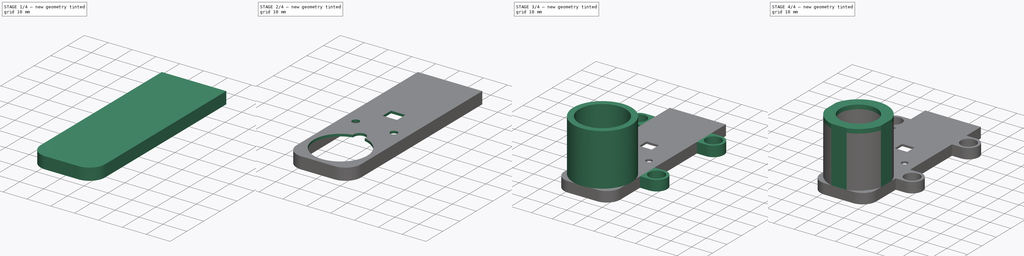
[diagram: build sequence overview — one tinted view per stage of 4, left to right]
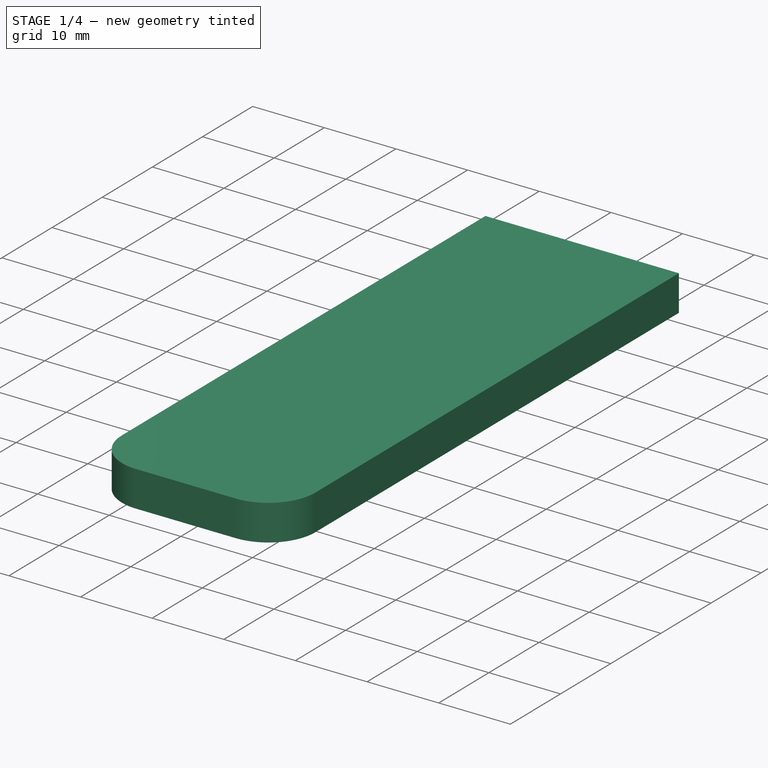
[diagram: stage 1 of 4 — iso view after this stage's code; geometry added in this stage tinted green]
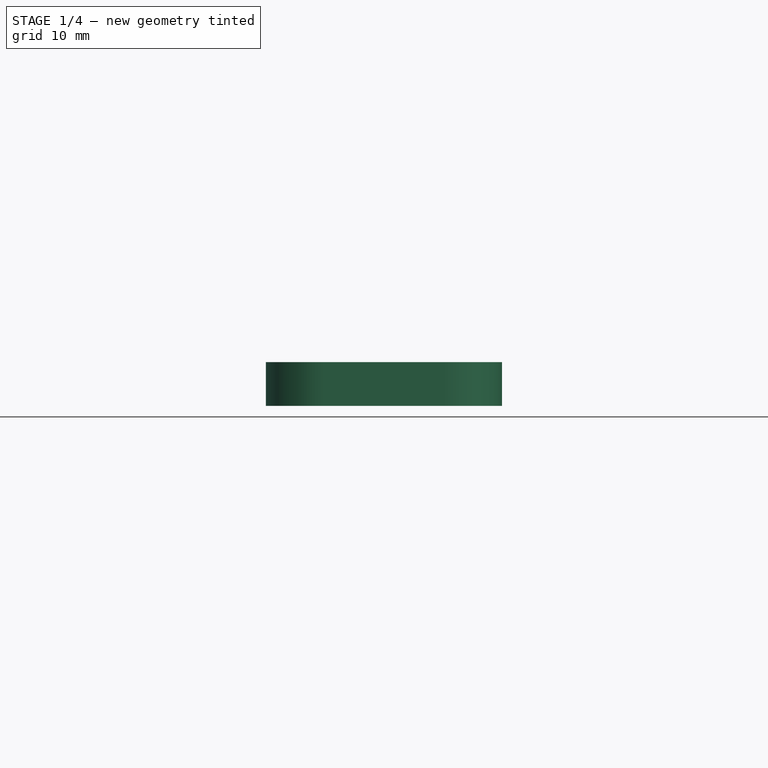
[diagram: stage 1 of 4 — front view after this stage's code; geometry added in this stage tinted green]
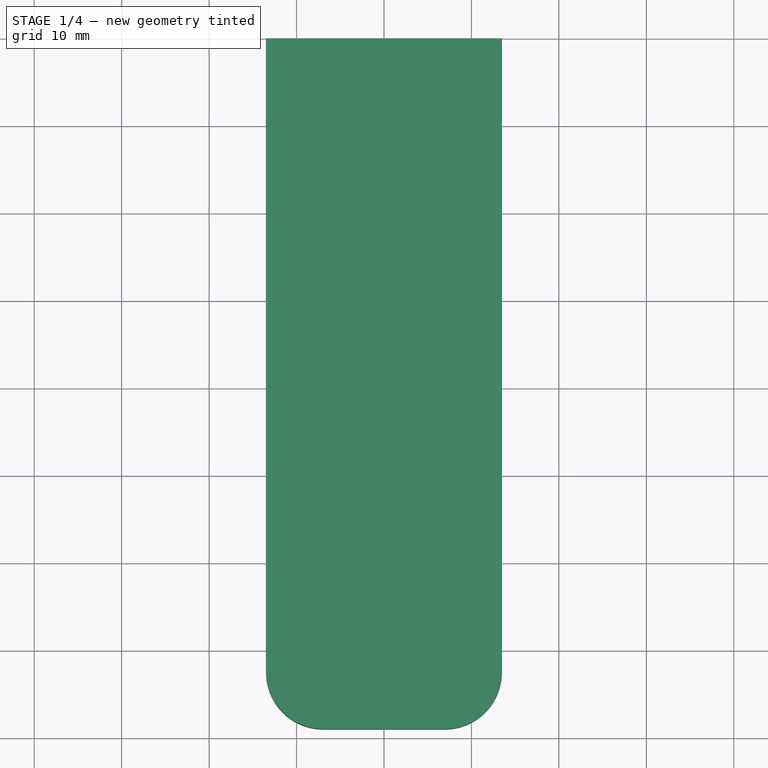
[diagram: stage 1 of 4 — top view after this stage's code; geometry added in this stage tinted green]
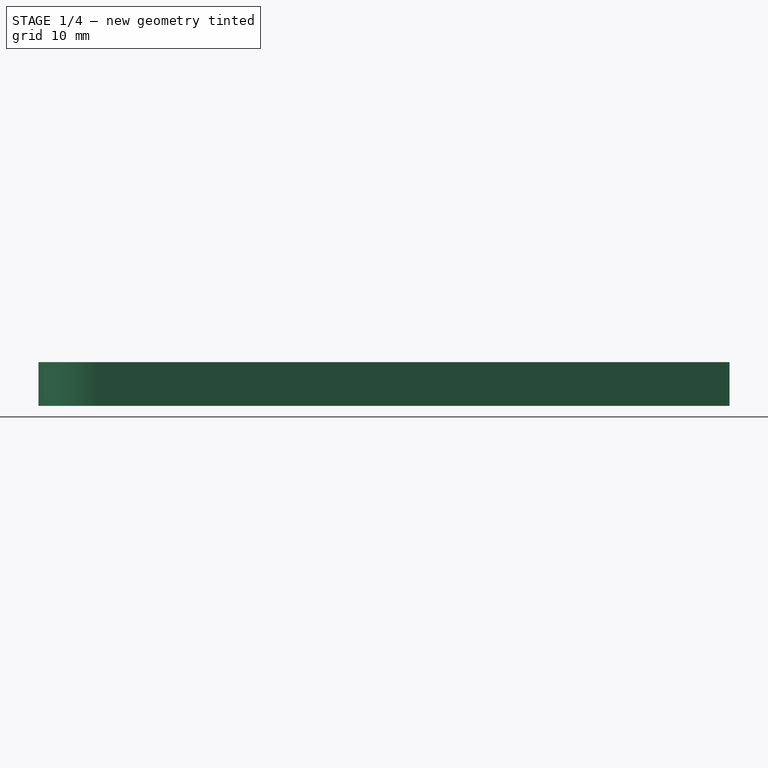
[diagram: stage 1 of 4 — right view after this stage's code; geometry added in this stage tinted green]
FCSTD DOCUMENT  (FreeCAD 1.0R38641 +678 (Git))
Label: hub
License: All rights reserved
LicenseURL: https://en.wikipedia.org/wiki/All_rights_reserved
objects: Sketcher::SketchObject×9, PartDesign::Pad×5, PartDesign::Pocket×4, PartDesign::Body×1
note: 46 computed .brp shape members not serialized (recipe doc carries the construction recipe); baked Part::Feature solids carry a one-line shape summary decoded from their .brp

FEATURE [Sketcher::SketchObject] Sketch188
  ArcFitTolerance = 0
  AttachmentSupport = -> [XY_Plane024]
  FullyConstrained = true
  MakeInternals = false
  MapMode = 5
  sketch-geometry (12):
    g0: LineSegment StartX=11.5 StartY=-2 StartZ=0 EndX=11.5 EndY=-72 EndZ=0
    g1: LineSegment StartX=6.5 StartY=-77 StartZ=0 EndX=-6.5 EndY=-77 EndZ=0
    g2: LineSegment StartX=-11.5 StartY=-72 StartZ=0 EndX=-11.5 EndY=-2 EndZ=0
    g3: ArcOfCircle CenterX=-6.5 CenterY=-72 CenterZ=0 NormalX=0 NormalY=0 NormalZ=1 AngleXU=0 Radius=5 StartAngle=3.14159 EndAngle=4.71239
    g4: ArcOfCircle CenterX=6.5 CenterY=-72 CenterZ=0 NormalX=0 NormalY=0 NormalZ=1 AngleXU=0 Radius=5 StartAngle=4.71239 EndAngle=6.28319
    g5: LineSegment StartX=-13.5 StartY=0 StartZ=0 EndX=-13.5 EndY=-72.44 EndZ=0
    g6: LineSegment StartX=-6.94 StartY=-79 StartZ=0 EndX=6.94 EndY=-79 EndZ=0
    g7: LineSegment StartX=13.5 StartY=-72.44 StartZ=0 EndX=13.5 EndY=0 EndZ=0
    g8: ArcOfCircle CenterX=-6.94 CenterY=-72.44 CenterZ=0 NormalX=0 NormalY=0 NormalZ=1 AngleXU=0 Radius=6.56 StartAngle=3.14159 EndAngle=4.71239
    g9: ArcOfCircle CenterX=6.94 CenterY=-72.44 CenterZ=0 NormalX=0 NormalY=0 NormalZ=1 AngleXU=0 Radius=6.56 StartAngle=4.71239 EndAngle=6.28319
    g10: LineSegment StartX=-11.5 StartY=-2 StartZ=0 EndX=11.5 EndY=-2 EndZ=0
    g11: LineSegment StartX=13.5 StartY=0 StartZ=0 EndX=-13.5 EndY=0 EndZ=0
  constraints (32):
    c: Horizontal(g1)
    c: Vertical(g0)
    c: Vertical(g2)
    c: Distance(g-1,g2) = 11.5
    c: Tangent(g1,g3) = 1.5708
    c: Tangent(g2,g3) = 1.5708
    c: Distance(g-1,g1) = 77
    c: Tangent(g0,g4) = 1.5708
    c: Tangent(g1,g4) = 1.5708
    c: Radius(g4) = 5
    c: Equal(g4,g3)
    c: PointOnObject(g5,g-1)
    c: Vertical(g5)
    c: Horizontal(g6)
    c: PointOnObject(g7,g-1)
    c: Vertical(g7)
    c: Tangent(g5,g8) = -1.5708
    c: Tangent(g6,g8) = -1.5708
    c: Radius(g8) = 6.56
    c: Tangent(g7,g9) = -1.5708
    c: Tangent(g6,g9) = -1.5708
    c: Equal(g8,g9)
    c: Distance(g-1,g6) = 79
    c: Horizontal(g10)
    c: Coincident(g2,g10)
    c: Coincident(g0,g10)
    c: DistanceX(g10,g10) = 23
    c: Distance(g-1,g10) = 2
    c: Distance(g7,g5) = 27
    c: Distance(g2,g5) = 2
    c: Coincident(g7,g11)
    c: Coincident(g5,g11)
FEATURE [PartDesign::Pad] Pad086
  Direction = (0,0,1)
  Length = 4
  Length2 = 10
  Profile = -> Sketch188
  ReferenceAxis = -> Sketch188 [N_Axis]
  Suppressed = false
  Type = 0
FEATURE [Sketcher::SketchObject] Sketch189
  ArcFitTolerance = 0
  AttachmentSupport = -> [Pad086]
  FullyConstrained = true
  MakeInternals = false
  MapMode = 5
  Placement = pos=(0,0,4) rot=(0,0,1;0rad)
  sketch-geometry (6):
    g0: LineSegment StartX=-13.5 StartY=0 StartZ=0 EndX=13.5 EndY=0 EndZ=0
    g1: LineSegment StartX=13.5 StartY=0 StartZ=0 EndX=13.5 EndY=-72.44 EndZ=0
    g2: LineSegment StartX=6.94 StartY=-79 StartZ=0 EndX=-6.94 EndY=-79 EndZ=0
    g3: LineSegment StartX=-13.5 StartY=-72.44 StartZ=0 EndX=-13.5 EndY=0 EndZ=0
    g4: ArcOfCircle CenterX=-6.94 CenterY=-72.44 CenterZ=0 NormalX=0 NormalY=0 NormalZ=1 AngleXU=0 Radius=6.56 StartAngle=3.14159 EndAngle=4.71239
    g5: ArcOfCircle CenterX=6.94 CenterY=-72.44 CenterZ=0 NormalX=0 NormalY=0 NormalZ=1 AngleXU=0 Radius=6.56 StartAngle=4.71239 EndAngle=6.28319
  constraints (16):
    c: Coincident(g0,g1)
    c: Coincident(g3,g0)
    c: Horizontal(g0)
    c: Horizontal(g2)
    c: Vertical(g1)
    c: Vertical(g3)
    c: PointOnObject(g0,g-1)
    c: DistanceX(g0,g0) = 27
    c: Distance(g-1,g3) = 13.5
    c: Distance(g-1,g2) = 79
    c: Tangent(g3,g4) = 1.5708
    c: Tangent(g2,g4) = 1.5708
    c: Radius(g4) = 6.56
    c: Tangent(g1,g5) = 1.5708
    c: Tangent(g2,g5) = 1.5708
    c: Equal(g4,g5)
FEATURE [PartDesign::Pad] Pad087
  BaseFeature = -> Pad086
  Direction = (0,0,1)
  Length = 1
  Length2 = 10
  Profile = -> Sketch189
  ReferenceAxis = -> Sketch189 [N_Axis]
  Suppressed = false
  Type = 0
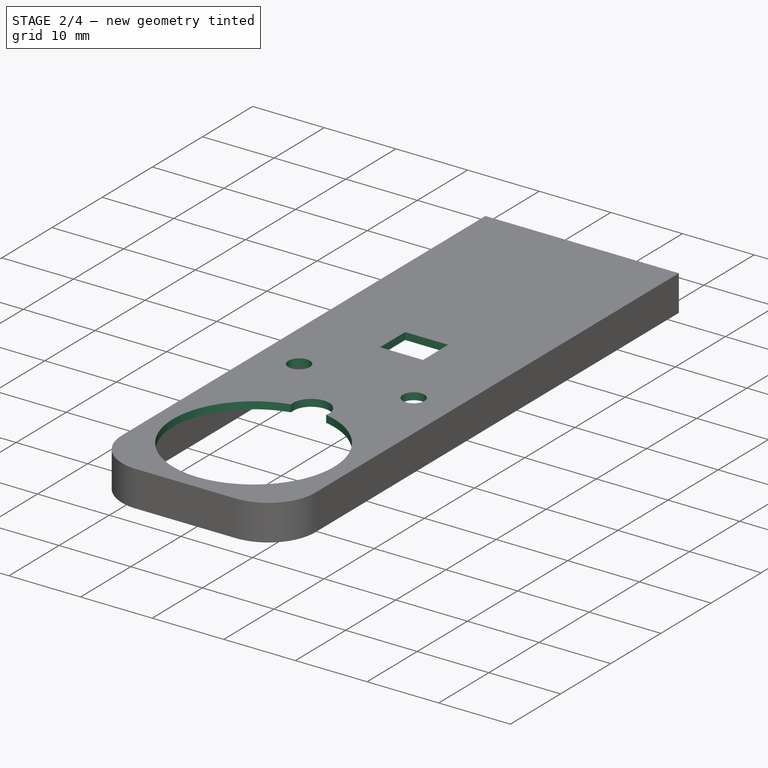
[diagram: stage 2 of 4 — iso view after this stage's code; geometry added in this stage tinted green]
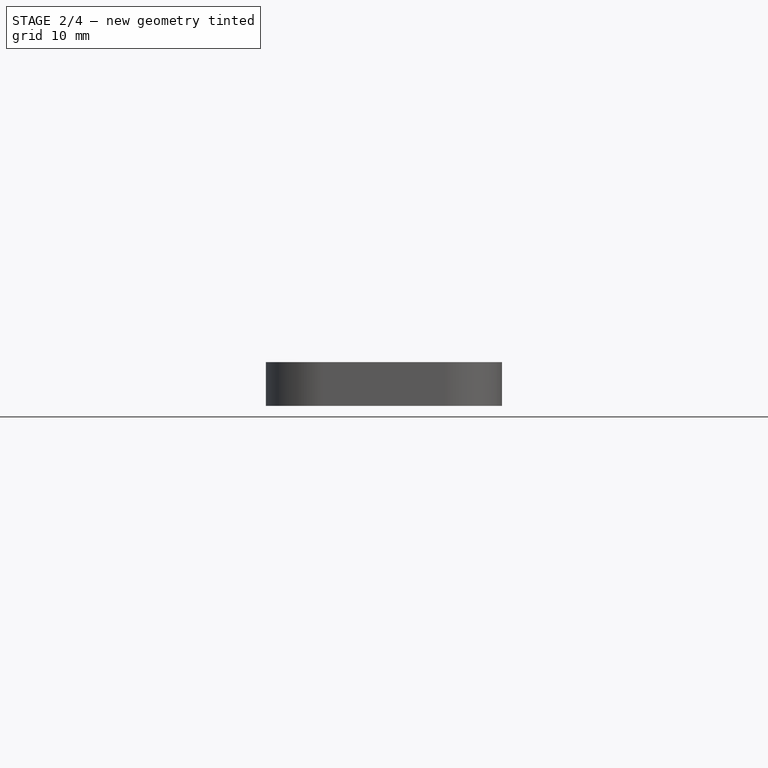
[diagram: stage 2 of 4 — front view after this stage's code; geometry added in this stage tinted green]
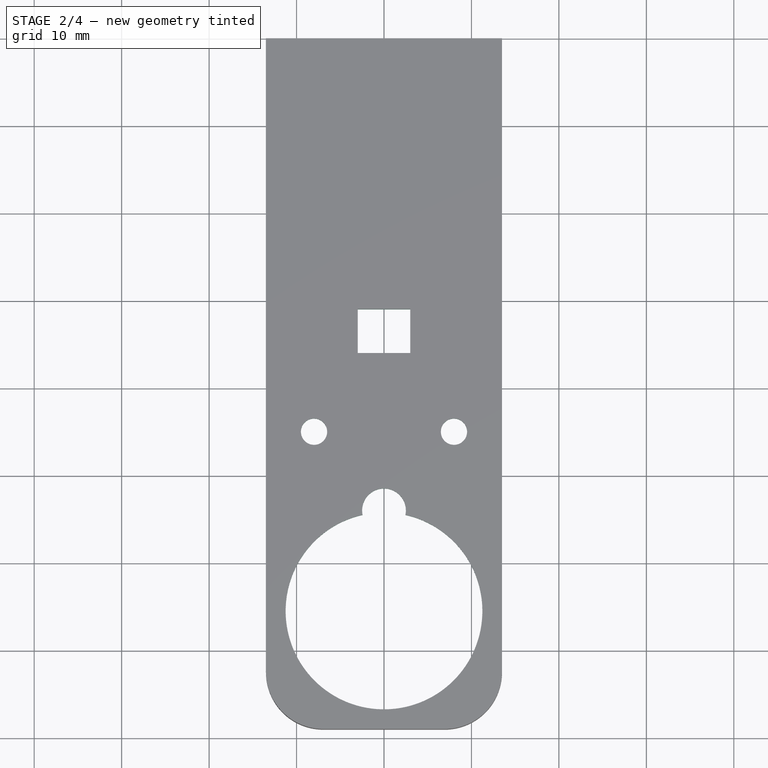
[diagram: stage 2 of 4 — top view after this stage's code; geometry added in this stage tinted green]
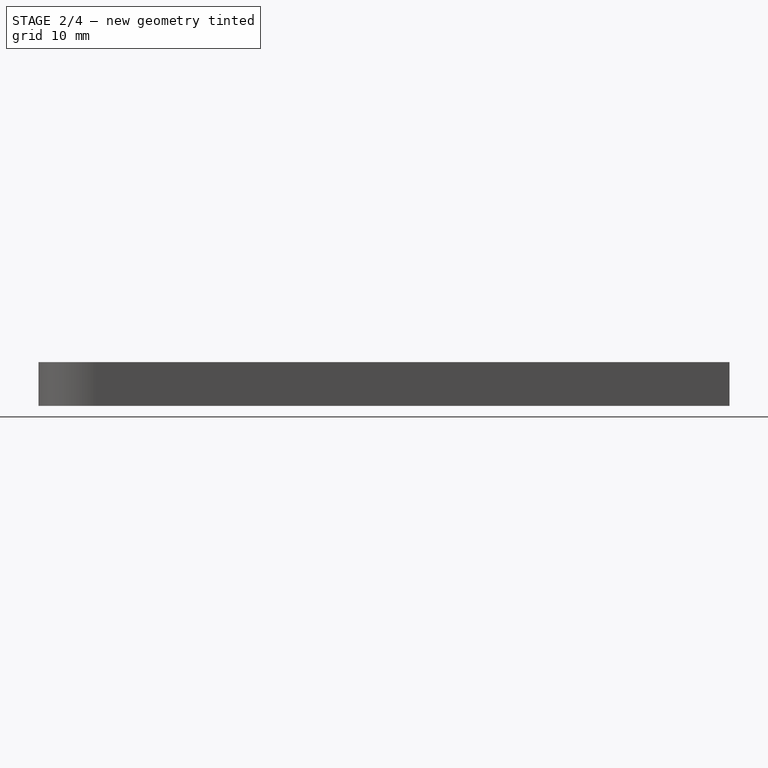
[diagram: stage 2 of 4 — right view after this stage's code; geometry added in this stage tinted green]
FEATURE [Sketcher::SketchObject] Sketch191
  ArcFitTolerance = 0
  FullyConstrained = true
  MakeInternals = false
  MapMode = 5
  Placement = pos=(0,0,5) rot=(0,0,1;0rad)
  sketch-geometry (3):
    g0: Circle CenterX=0 CenterY=-65.5 CenterZ=0 NormalX=0 NormalY=0 NormalZ=1 AngleXU=0 Radius=11.25
    g1: Circle CenterX=8 CenterY=-45 CenterZ=0 NormalX=0 NormalY=0 NormalZ=1 AngleXU=0 Radius=1.5
    g2: Circle CenterX=-8 CenterY=-45 CenterZ=0 NormalX=0 NormalY=0 NormalZ=1 AngleXU=0 Radius=1.5
  constraints (9):
    c: PointOnObject(g0,g-2)
    c: Diameter(g0) = 22.5
    c: DistanceY(g-1,g0) = -65.5
    c: Diameter(g1) = 3
    c: DistanceX(g-2,g2) = -8
    c: DistanceX(g-2,g1) = 8
    c: DistanceY(g-1,g1) = -45
    c: Equal(g1,g2)
    c: DistanceY(g-1,g2) = -45
FEATURE [PartDesign::Pocket] Pocket075
  BaseFeature = -> Pad087
  Direction = (0,0,-1)
  Length = 5
  Length2 = 5
  Profile = -> Sketch191
  ReferenceAxis = -> Sketch191 [N_Axis]
  Suppressed = false
  Type = 0
FEATURE [Sketcher::SketchObject] Sketch192
  ArcFitTolerance = 0
  AttachmentSupport = -> [Pocket075]
  FullyConstrained = true
  MakeInternals = false
  MapMode = 5
  Placement = pos=(0,0,4) rot=(1,0,0;3.14159rad)
  sketch-geometry (5):
    g0: LineSegment StartX=-3 StartY=36 StartZ=0 EndX=3 EndY=36 EndZ=0
    g1: LineSegment StartX=3 StartY=36 StartZ=0 EndX=3 EndY=31 EndZ=0
    g2: LineSegment StartX=3 StartY=31 StartZ=0 EndX=-3 EndY=31 EndZ=0
    g3: LineSegment StartX=-3 StartY=31 StartZ=0 EndX=-3 EndY=36 EndZ=0
    g4: Circle CenterX=0 CenterY=54 CenterZ=0 NormalX=0 NormalY=0 NormalZ=1 AngleXU=0 Radius=2.5
  constraints (15):
    c: Coincident(g0,g1)
    c: Coincident(g1,g2)
    c: Coincident(g2,g3)
    c: Coincident(g3,g0)
    c: Horizontal(g0)
    c: Horizontal(g2)
    c: Vertical(g1)
    c: Vertical(g3)
    c: PointOnObject(g4,g-2)
    c: Diameter(g4) = 5
    c: DistanceX(g0,g0) = 6
    c: DistanceY(g1,g1) = 5
    c: Distance(g-1,g0) = 36
    c: Distance(g-1,g3) = 3
    c: DistanceY(g-1,g4) = 54
FEATURE [PartDesign::Pocket] Pocket076
  BaseFeature = -> Pocket075
  Direction = (0,0,1)
  Length = 2
  Length2 = 5
  Profile = -> Sketch192
  ReferenceAxis = -> Sketch192 [N_Axis]
  Suppressed = false
  Type = 0
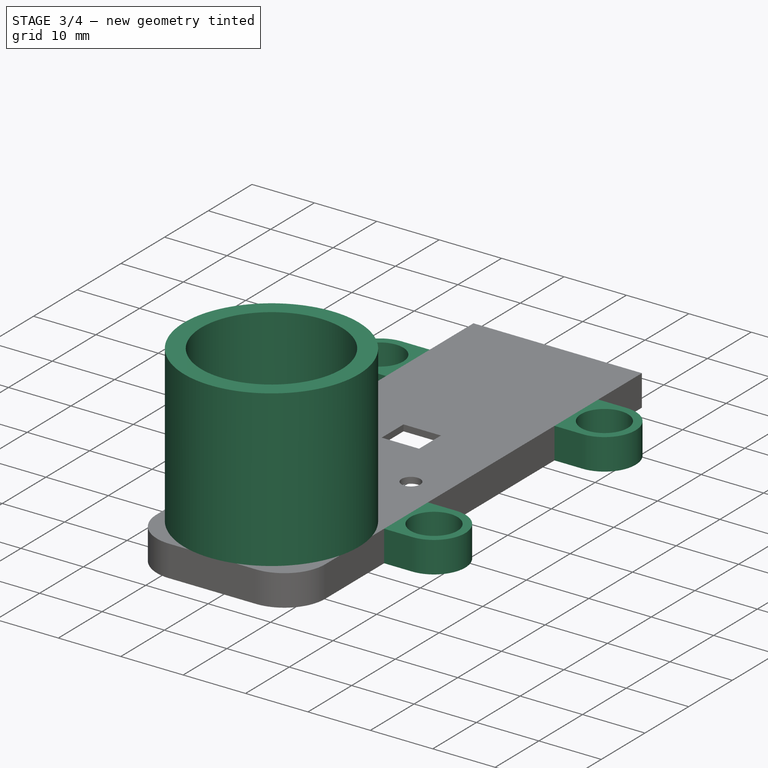
[diagram: stage 3 of 4 — iso view after this stage's code; geometry added in this stage tinted green]
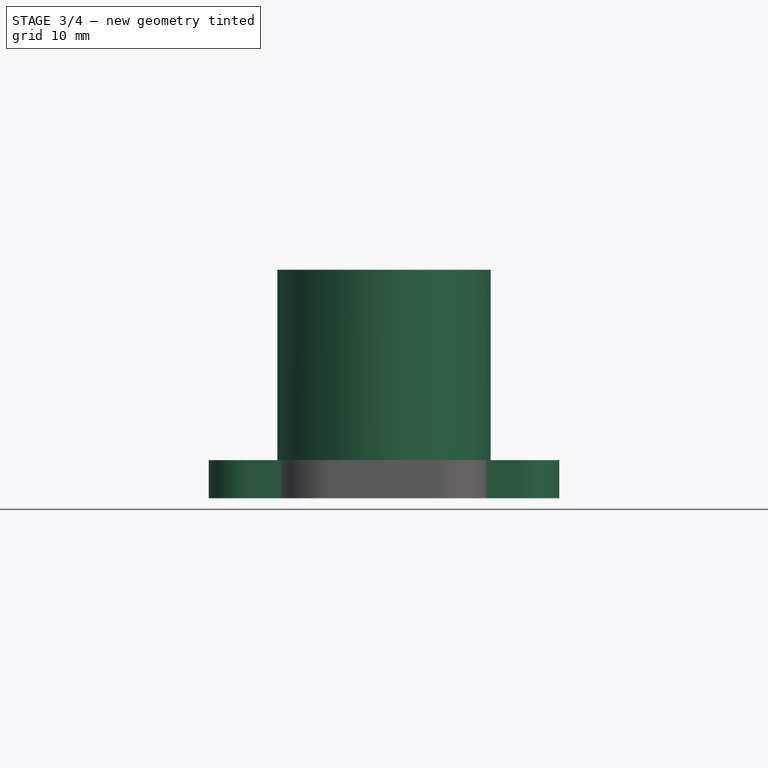
[diagram: stage 3 of 4 — front view after this stage's code; geometry added in this stage tinted green]
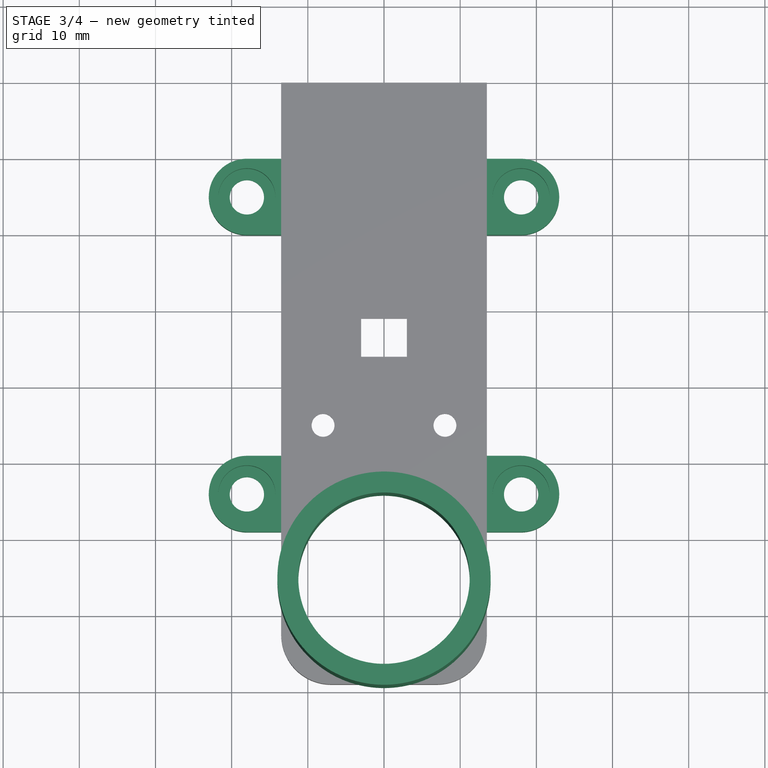
[diagram: stage 3 of 4 — top view after this stage's code; geometry added in this stage tinted green]
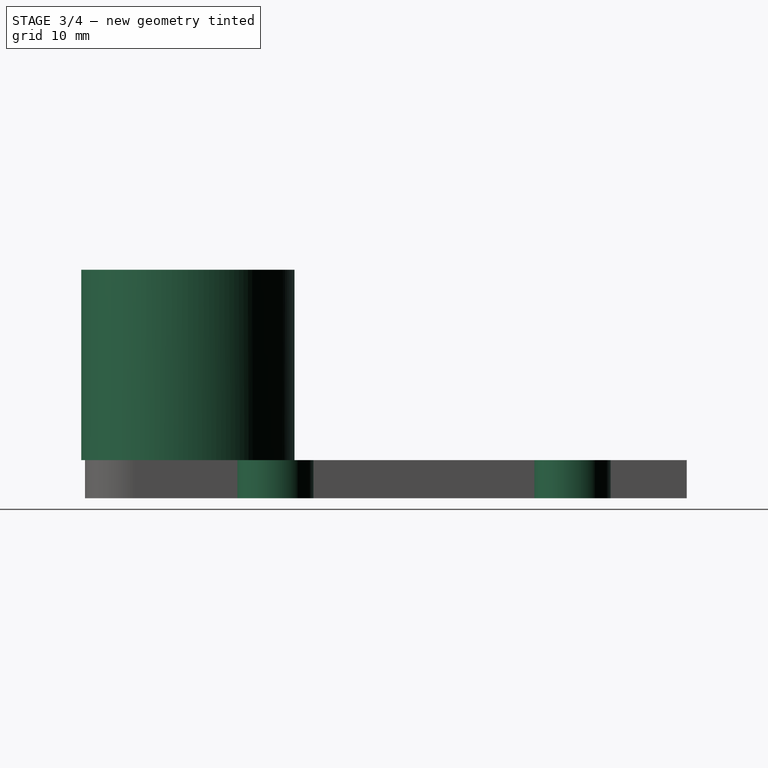
[diagram: stage 3 of 4 — right view after this stage's code; geometry added in this stage tinted green]
FEATURE [Sketcher::SketchObject] Sketch193
  ArcFitTolerance = 0
  AttachmentSupport = -> [Pocket076]
  FullyConstrained = true
  MakeInternals = false
  MapMode = 5
  Placement = pos=(0,0,5) rot=(0,0,1;0rad)
  sketch-geometry (20):
    g0: LineSegment StartX=-13 StartY=-49 StartZ=0 EndX=-13 EndY=-59 EndZ=0
    g1: LineSegment StartX=-13 StartY=-59 StartZ=0 EndX=-18 EndY=-59 EndZ=0
    g2: LineSegment StartX=-13 StartY=-49 StartZ=0 EndX=-18 EndY=-49 EndZ=0
    g3: ArcOfCircle CenterX=-18 CenterY=-54 CenterZ=0 NormalX=0 NormalY=0 NormalZ=1 AngleXU=0 Radius=5 StartAngle=1.5708 EndAngle=4.71239
    g4: LineSegment StartX=13 StartY=-49 StartZ=0 EndX=13 EndY=-59 EndZ=0
    g5: LineSegment StartX=13 StartY=-59 StartZ=0 EndX=18 EndY=-59 EndZ=0
    g6: LineSegment StartX=13 StartY=-49 StartZ=0 EndX=18 EndY=-49 EndZ=0
    g7: ArcOfCircle CenterX=18 CenterY=-54 CenterZ=0 NormalX=0 NormalY=0 NormalZ=1 AngleXU=0 Radius=5 StartAngle=4.71239 EndAngle=7.85398
    g8: Circle CenterX=-18 CenterY=-54 CenterZ=0 NormalX=0 NormalY=0 NormalZ=1 AngleXU=0 Radius=2.25
    g9: Circle CenterX=18 CenterY=-54 CenterZ=0 NormalX=0 NormalY=0 NormalZ=1 AngleXU=0 Radius=2.25
    g10: Circle CenterX=18 CenterY=-15 CenterZ=0 NormalX=0 NormalY=0 NormalZ=1 AngleXU=0 Radius=2.25
    g11: LineSegment StartX=13 StartY=-10 StartZ=0 EndX=13 EndY=-20 EndZ=0
    g12: LineSegment StartX=13 StartY=-20 StartZ=0 EndX=18 EndY=-20 EndZ=0
    g13: LineSegment StartX=13 StartY=-10 StartZ=0 EndX=18 EndY=-10 EndZ=0
    g14: ArcOfCircle CenterX=18 CenterY=-15 CenterZ=0 NormalX=0 NormalY=0 NormalZ=1 AngleXU=0 Radius=5 StartAngle=4.71239 EndAngle=7.85398
    g15: Circle CenterX=-18 CenterY=-15 CenterZ=0 NormalX=0 NormalY=0 NormalZ=1 AngleXU=0 Radius=2.25
    g16: LineSegment StartX=-13 StartY=-10 StartZ=0 EndX=-13 EndY=-20 EndZ=0
    g17: LineSegment StartX=-13 StartY=-20 StartZ=0 EndX=-18 EndY=-20 EndZ=0
    g18: LineSegment StartX=-13 StartY=-10 StartZ=0 EndX=-18 EndY=-10 EndZ=0
    g19: ArcOfCircle CenterX=-18 CenterY=-15 CenterZ=0 NormalX=0 NormalY=0 NormalZ=1 AngleXU=0 Radius=5 StartAngle=1.5708 EndAngle=4.71239
  constraints (60):
    c: Vertical(g0)
    c: Coincident(g1,g0)
    c: Horizontal(g1)
    c: Coincident(g2,g0)
    c: Horizontal(g2)
    c: Coincident(g3,g2)
    c: Coincident(g3,g1)
    c: Vertical(g4)
    c: Coincident(g5,g4)
    c: Horizontal(g5)
    c: Coincident(g6,g4)
    c: Horizontal(g6)
    c: Coincident(g7,g6)
    c: Coincident(g7,g5)
    c: DistanceX(g2,g2) = 5
    c: Equal(g2,g1)
    c: Equal(g1,g6)
    c: Equal(g6,g5)
    c: DistanceY(g0,g0) = 10
    c: Equal(g0,g4)
    c: Radius(g3) = 5
    c: Equal(g3,g7)
    c: Distance(g-1,g2) = 49
    c: Distance(g-1,g0) = 13
    c: Distance(g-1,g4) = 13
    c: Distance(g-1,g6) = 49
    c: Coincident(g8,g3)
    c: Diameter(g8) = 4.5
    c: Coincident(g9,g7)
    c: Equal(g9,g8)
    c: Equal(g10,g8)
    c: Vertical(g11)
    c: Coincident(g12,g11)
    c: Horizontal(g12)
    c: Coincident(g13,g11)
    c: Horizontal(g13)
    c: Coincident(g14,g10)
    c: Coincident(g14,g13)
    c: Coincident(g14,g12)
    c: Equal(g15,g8)
    c: Vertical(g16)
    c: Coincident(g17,g16)
    c: Horizontal(g17)
    c: Coincident(g18,g16)
    c: Horizontal(g18)
    c: Coincident(g19,g15)
    c: Coincident(g19,g18)
    c: Coincident(g19,g17)
    c: Distance(g-1,g13) = 10
    c: Distance(g-1,g18) = 10
    c: Equal(g19,g3)
    c: Equal(g3,g14)
    c: Equal(g6,g12)
    c: Equal(g12,g13)
    c: Equal(g13,g17)
    c: Equal(g17,g18)
    c: Distance(g-1,g11) = 13
    c: Distance(g-1,g16) = 13
    c: DistanceX(g-2,g10) = 18
    c: DistanceX(g-2,g15) = -18
FEATURE [PartDesign::Pad] Pad088
  BaseFeature = -> Pocket076
  Direction = (0,0,1)
  Length = 5
  Length2 = 10
  Profile = -> Sketch193
  ReferenceAxis = -> Sketch193 [N_Axis]
  Reversed = true
  Suppressed = false
  Type = 0
FEATURE [Sketcher::SketchObject] Sketch195
  ArcFitTolerance = 0
  AttachmentSupport = -> [Pad088]
  FullyConstrained = true
  MakeInternals = false
  MapMode = 5
  Placement = pos=(0,0,5) rot=(0,0,1;0rad)
  sketch-geometry (4):
    g0: Circle CenterX=-18 CenterY=-54 CenterZ=0 NormalX=0 NormalY=0 NormalZ=1 AngleXU=0 Radius=3.75
    g1: Circle CenterX=18 CenterY=-54 CenterZ=0 NormalX=0 NormalY=0 NormalZ=1 AngleXU=0 Radius=3.75
    g2: Circle CenterX=18 CenterY=-15 CenterZ=0 NormalX=0 NormalY=0 NormalZ=1 AngleXU=0 Radius=3.75
    g3: Circle CenterX=-18 CenterY=-15 CenterZ=0 NormalX=0 NormalY=0 NormalZ=1 AngleXU=0 Radius=3.75
  constraints (12):
    c: Diameter(g0) = 7.5
    c: DistanceX(g-2,g0) = -18
    c: DistanceX(g-2,g1) = 18
    c: DistanceY(g-1,g0) = -54
    c: DistanceY(g-1,g1) = -54
    c: Equal(g0,g1)
    c: Equal(g1,g2)
    c: Equal(g2,g3)
    c: DistanceX(g-2,g2) = 18
    c: DistanceX(g-2,g3) = -18
    c: DistanceY(g-1,g3) = -15
    c: DistanceY(g-1,g2) = -15
FEATURE [PartDesign::Pocket] Pocket078
  BaseFeature = -> Pad088
  Direction = (0,0,-1)
  Length = 4
  Length2 = 5
  Profile = -> Sketch195
  ReferenceAxis = -> Sketch195 [N_Axis]
  Suppressed = false
  Type = 0
FEATURE [Sketcher::SketchObject] Sketch196
  ArcFitTolerance = 0
  AttachmentSupport = -> [Pocket075]
  FullyConstrained = true
  MakeInternals = false
  MapMode = 5
  Placement = pos=(0,0,5) rot=(0,0,1;0rad)
  sketch-geometry (2):
    g0: Circle CenterX=0 CenterY=-65.5 CenterZ=0 NormalX=0 NormalY=0 NormalZ=1 AngleXU=0 Radius=14
    g1: Circle CenterX=0 CenterY=-65.5 CenterZ=0 NormalX=0 NormalY=0 NormalZ=1 AngleXU=0 Radius=11.25
  constraints (5):
    c: PointOnObject(g0,g-2)
    c: DistanceY(g-1,g0) = -65.5
    c: Diameter(g0) = 28
    c: Coincident(g1,g0)
    c: Diameter(g1) = 22.5
FEATURE [PartDesign::Pad] Pad089
  BaseFeature = -> Pocket078
  Direction = (0,0,1)
  Length = 25
  Length2 = 10
  Profile = -> Sketch196
  ReferenceAxis = -> Sketch196 [N_Axis]
  Suppressed = false
  Type = 0
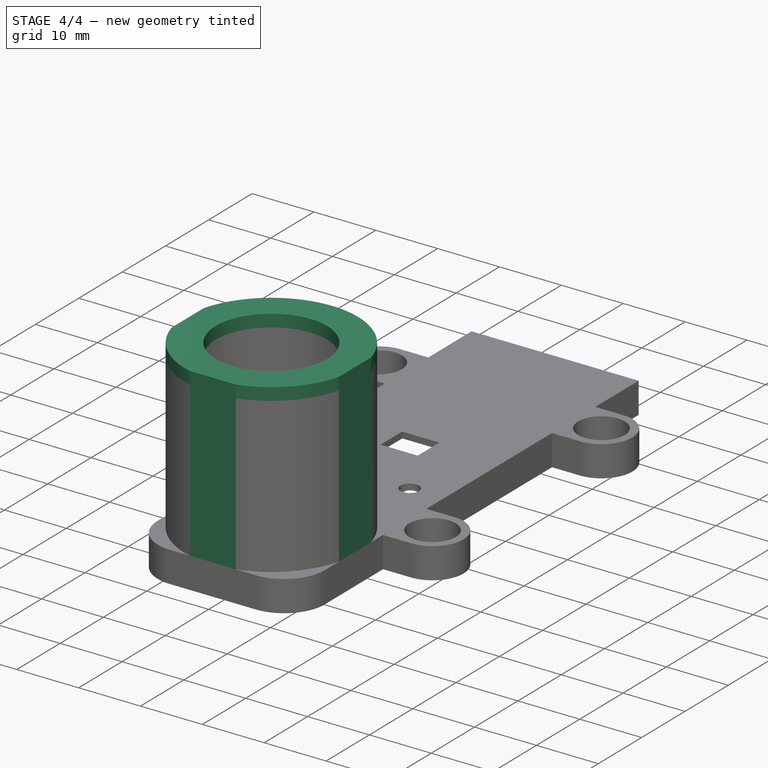
[diagram: stage 4 of 4 — iso view after this stage's code; geometry added in this stage tinted green]
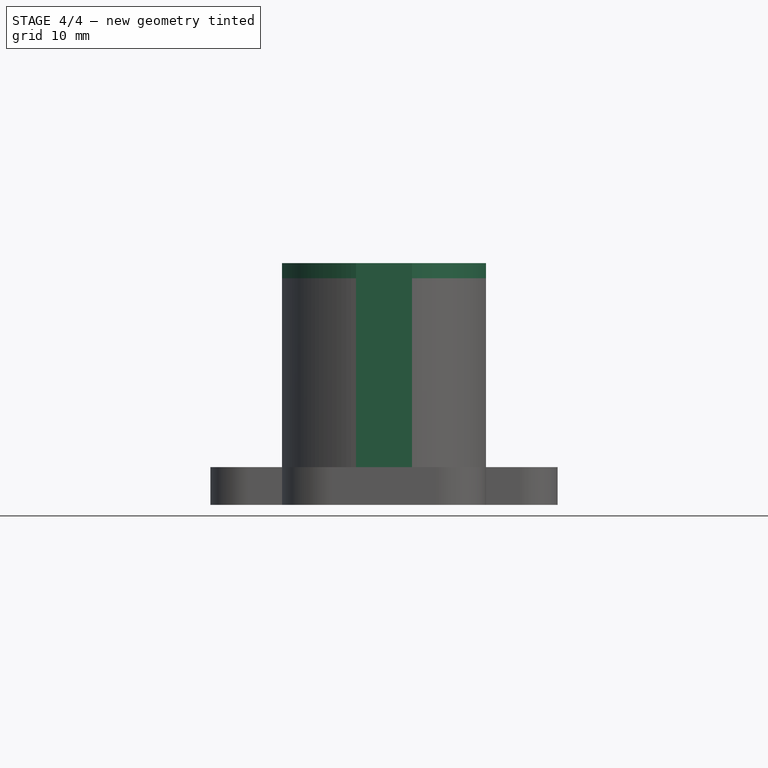
[diagram: stage 4 of 4 — front view after this stage's code; geometry added in this stage tinted green]
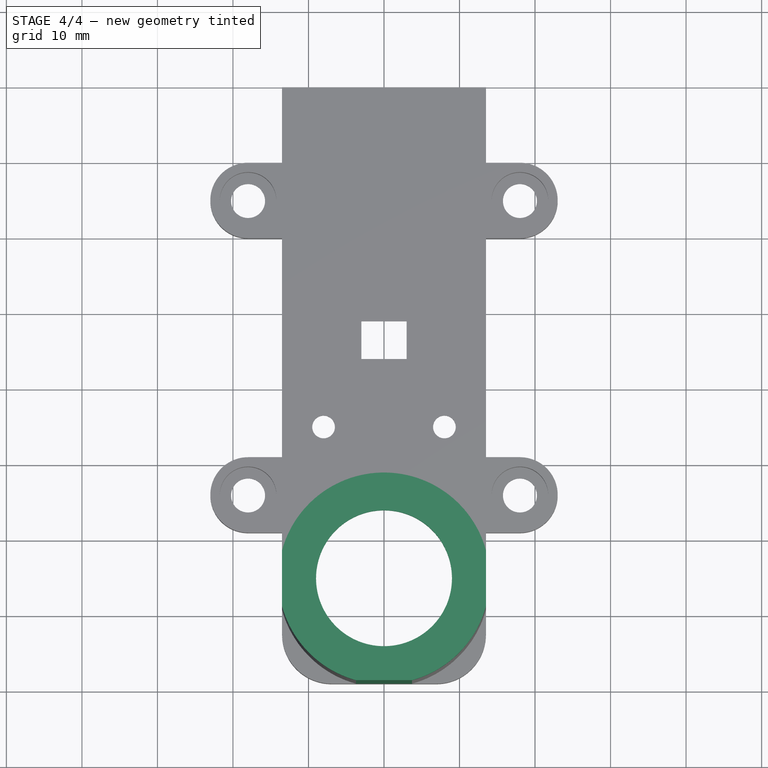
[diagram: stage 4 of 4 — top view after this stage's code; geometry added in this stage tinted green]
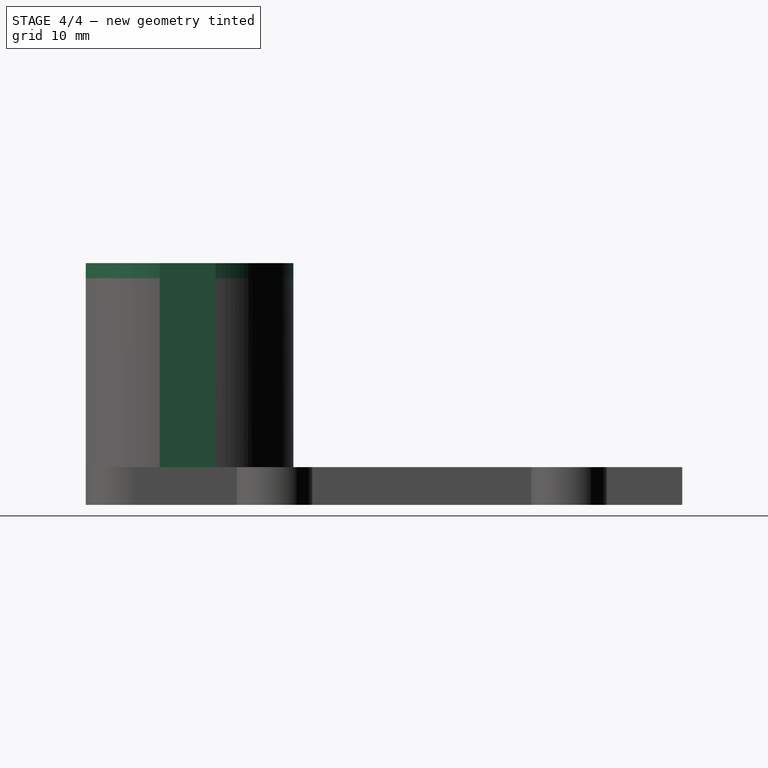
[diagram: stage 4 of 4 — right view after this stage's code; geometry added in this stage tinted green]
FEATURE [Sketcher::SketchObject] Sketch197
  ArcFitTolerance = 0
  AttachmentSupport = -> [Pad089]
  FullyConstrained = true
  MakeInternals = false
  MapMode = 5
  Placement = pos=(0,0,30) rot=(0,0,1;0rad)
  sketch-geometry (2):
    g0: Circle CenterX=0 CenterY=-65.5 CenterZ=0 NormalX=0 NormalY=0 NormalZ=1 AngleXU=0 Radius=14
    g1: Circle CenterX=0 CenterY=-65.5 CenterZ=0 NormalX=0 NormalY=0 NormalZ=1 AngleXU=0 Radius=9
  constraints (5):
    c: PointOnObject(g0,g-2)
    c: DistanceY(g-1,g0) = -65.5
    c: Diameter(g0) = 28
    c: Coincident(g1,g0)
    c: Diameter(g1) = 18
FEATURE [PartDesign::Pad] Pad090
  BaseFeature = -> Pad089
  Direction = (0,0,1)
  Length = 2
  Length2 = 10
  Profile = -> Sketch197
  ReferenceAxis = -> Sketch197 [N_Axis]
  Suppressed = false
  Type = 0
FEATURE [Sketcher::SketchObject] Sketch198
  ArcFitTolerance = 0
  AttachmentSupport = -> [Pad090]
  FullyConstrained = true
  MakeInternals = false
  MapMode = 5
  Placement = pos=(0,0,0) rot=(1,0,0;3.14159rad)
  sketch-geometry (8):
    g0: LineSegment StartX=-13.5 StartY=61 StartZ=0 EndX=-13.5 EndY=79 EndZ=0
    g1: LineSegment StartX=-13.5 StartY=79 StartZ=0 EndX=13.5 EndY=79 EndZ=0
    g2: LineSegment StartX=13.5 StartY=61 StartZ=0 EndX=13.5 EndY=79 EndZ=0
    g3: LineSegment StartX=-13.5 StartY=61 StartZ=0 EndX=-16 EndY=61 EndZ=0
    g4: LineSegment StartX=-16 StartY=61 StartZ=0 EndX=-16 EndY=81 EndZ=0
    g5: LineSegment StartX=-16 StartY=81 StartZ=0 EndX=16 EndY=81 EndZ=0
    g6: LineSegment StartX=16 StartY=81 StartZ=0 EndX=16 EndY=61 EndZ=0
    g7: LineSegment StartX=16 StartY=61 StartZ=0 EndX=13.5 EndY=61 EndZ=0
  constraints (24):
    c: Vertical(g0)
    c: Coincident(g1,g0)
    c: Horizontal(g1)
    c: Coincident(g2,g1)
    c: Vertical(g2)
    c: Coincident(g3,g0)
    c: Horizontal(g3)
    c: Coincident(g4,g3)
    c: Vertical(g4)
    c: Coincident(g5,g4)
    c: Horizontal(g5)
    c: Coincident(g6,g5)
    c: Vertical(g6)
    c: Coincident(g7,g6)
    c: Coincident(g7,g2)
    c: Horizontal(g7)
    c: Distance(g-1,g5) = 81
    c: DistanceX(g5,g5) = 32
    c: DistanceY(g6,g6) = 20
    c: DistanceY(g4,g4) = 20
    c: DistanceX(g1,g1) = 27
    c: Distance(g-1,g4) = 16
    c: Distance(g-1,g0) = 13.5
    c: Distance(g5,g1) = 2
FEATURE [PartDesign::Pocket] Pocket079
  BaseFeature = -> Pad090
  Direction = (0,0,1)
  Length = 40
  Length2 = 5
  Profile = -> Sketch198
  ReferenceAxis = -> Sketch198 [N_Axis]
  Suppressed = false
  Type = 0
FEATURE [PartDesign::Body] Body024  label="hub"
  AllowCompound = false
  Group = -> [Sketch188,Pad086,Sketch189,Pad087,Sketch191,Pocket075,Sketch192,Pocket076,Sketch193,Pad088,Sketch195,Pocket078,Sketch196,Pad089,Sketch197,Pad090,Sketch198,Pocket079]
  Origin = -> Origin024
  Placement = pos=(0,-40,54) rot=(0,0,1;0rad)
  Tip = -> Pocket079
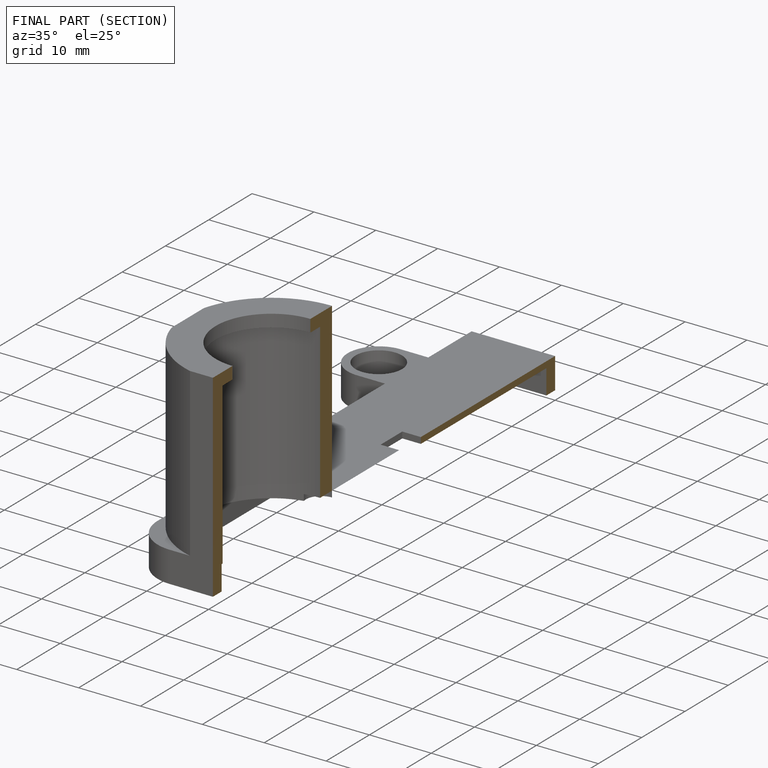
[diagram: finished part — half-section view (interior)]
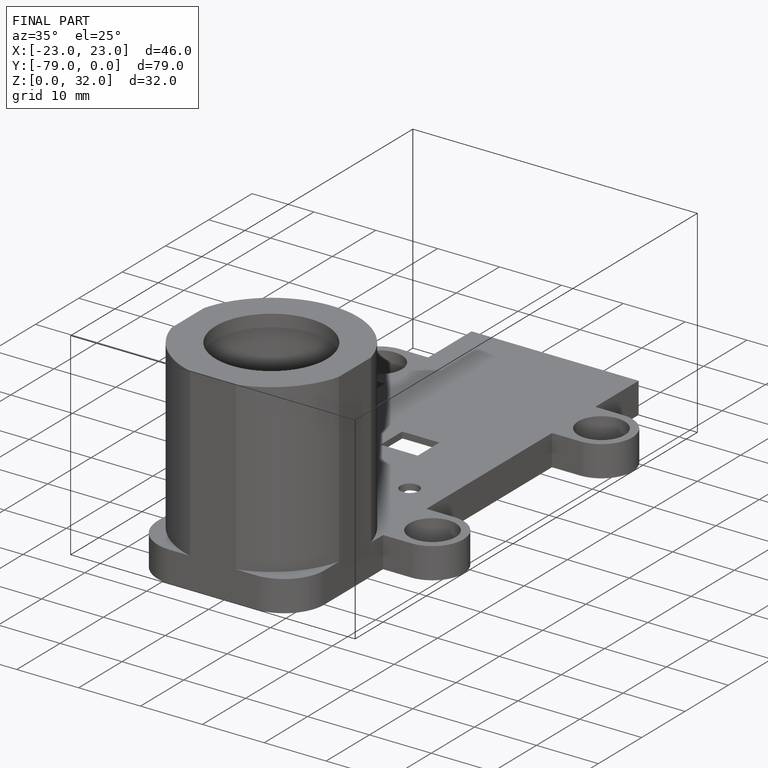
[diagram: finished part — iso view with bounding-box wireframe]
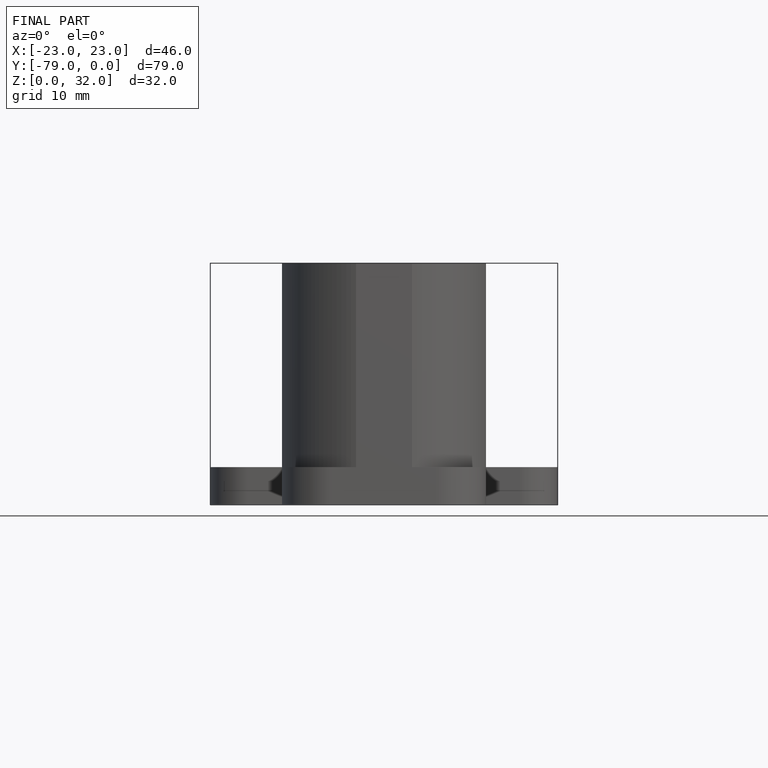
[diagram: finished part — front view with bounding-box wireframe]
